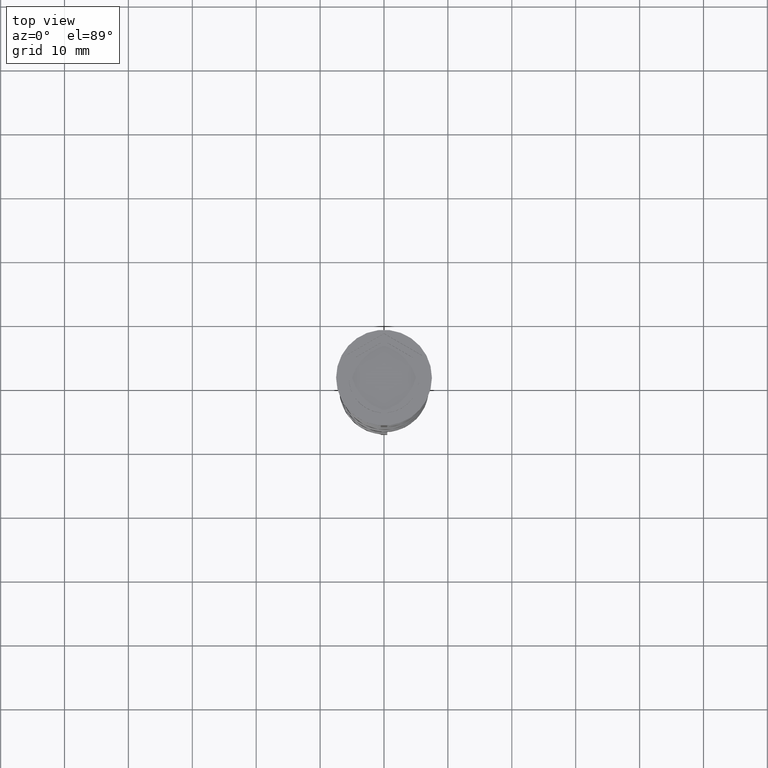
[diagram: clean part render]
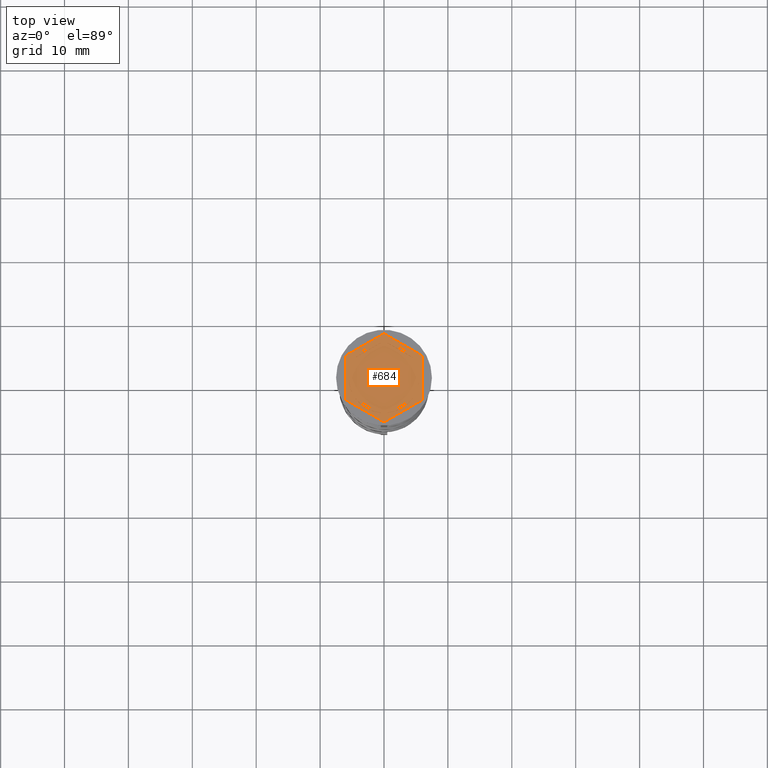
[diagram: same view with one face highlighted and labeled with its STEP entity id]
A machine part, top view. The second image highlights one B-rep face of the part: STEP entity #684.
In plain terms, the highlighted planar face has unit normal (0, 0, 1).
Its self-contained STEP definition (entity closure, byte-faithful):
#23 = VERTEX_POINT ( 'NONE', #2629 ) ;
#42 = DIRECTION ( 'NONE',  ( 1.000000000000000000, 0.000000000000000000, 0.000000000000000000 ) ) ;
#55 = ORIENTED_EDGE ( 'NONE', *, *, #3189, .F. ) ;
#58 = CARTESIAN_POINT ( 'NONE',  ( 0.000000000000000000, 6.928203230275506996, -1.000000000000000000 ) ) ;
#77 = VECTOR ( 'NONE', #2943, 1000.000000000000000 ) ;
#99 = ORIENTED_EDGE ( 'NONE', *, *, #3302, .F. ) ;
#144 = VERTEX_POINT ( 'NONE', #1241 ) ;
#194 = CIRCLE ( 'NONE', #2876, 5.500000000000001776 ) ;
#200 = ORIENTED_EDGE ( 'NONE', *, *, #822, .T. ) ;
#216 = DIRECTION ( 'NONE',  ( 1.000000000000000000, 0.000000000000000000, 0.000000000000000000 ) ) ;
#222 = ORIENTED_EDGE ( 'NONE', *, *, #2742, .F. ) ;
#230 = VECTOR ( 'NONE', #761, 1000.000000000000000 ) ;
#233 = LINE ( 'NONE', #1024, #692 ) ;
#253 = VECTOR ( 'NONE', #336, 1000.000000000000000 ) ;
#257 = CARTESIAN_POINT ( 'NONE',  ( 4.999999999999999112, -2.886751345948130432, -1.000000000000000888 ) ) ;
#319 = EDGE_CURVE ( 'NONE', #2925, #1383, #2705, .T. ) ;
#335 = DIRECTION ( 'NONE',  ( 1.000000000000000000, 0.000000000000000000, -0.000000000000000000 ) ) ;
#336 = DIRECTION ( 'NONE',  ( 0.000000000000000000, -1.000000000000000000, 0.000000000000000000 ) ) ;
#399 = ORIENTED_EDGE ( 'NONE', *, *, #1398, .T. ) ;
#405 = VECTOR ( 'NONE', #1809, 1000.000000000000227 ) ;
#425 = CARTESIAN_POINT ( 'NONE',  ( 0.5156865167015526330, -5.475770942661155161, -1.000000000000000888 ) ) ;
#427 = VECTOR ( 'NONE', #955, 1000.000000000000114 ) ;
#439 = CARTESIAN_POINT ( 'NONE',  ( -5.000000000000000888, -2.886751345948129099, -1.000000000000000888 ) ) ;
#447 = EDGE_CURVE ( 'NONE', #991, #2925, #1921, .T. ) ;
#471 = ORIENTED_EDGE ( 'NONE', *, *, #2321, .T. ) ;
#528 = CARTESIAN_POINT ( 'NONE',  ( -0.5156865167015569629, -5.475770942661155161, -1.000000000000000888 ) ) ;
#557 = CARTESIAN_POINT ( 'NONE',  ( 0.000000000000000000, 0.000000000000000000, -1.000000000000000000 ) ) ;
#570 = CARTESIAN_POINT ( 'NONE',  ( 0.000000000000000000, 0.000000000000000000, -1.000000000000000000 ) ) ;
#579 = AXIS2_PLACEMENT_3D ( 'NONE', #3180, #2029, #335 ) ;
#640 = ORIENTED_EDGE ( 'NONE', *, *, #3238, .F. ) ;
#656 = CARTESIAN_POINT ( 'NONE',  ( -6.000000000000000000, 3.464101615137752166, -1.000000000000000000 ) ) ;
#658 = AXIS2_PLACEMENT_3D ( 'NONE', #557, #829, #2513 ) ;
#662 = VERTEX_POINT ( 'NONE', #3161 ) ;
#684 = ADVANCED_FACE ( 'NONE', ( #873, #3452, #2067, #3143, #1726, #1794, #2834 ), #2905, .T. ) ;
#692 = VECTOR ( 'NONE', #3332, 1000.000000000000114 ) ;
#705 = VERTEX_POINT ( 'NONE', #894 ) ;
#711 = CIRCLE ( 'NONE', #3222, 5.500000000000001776 ) ;
#761 = DIRECTION ( 'NONE',  ( -0.8660254037844387076, 0.4999999999999998335, 0.000000000000000000 ) ) ;
#770 = CIRCLE ( 'NONE', #3114, 5.500000000000001776 ) ;
#822 = EDGE_CURVE ( 'NONE', #662, #991, #1028, .T. ) ;
#829 = DIRECTION ( 'NONE',  ( 0.000000000000000000, 0.000000000000000000, 1.000000000000000000 ) ) ;
#843 = EDGE_LOOP ( 'NONE', ( #222, #2511 ) ) ;
#873 = FACE_BOUND ( 'NONE', #3005, .T. ) ;
#883 = DIRECTION ( 'NONE',  ( 1.000000000000000000, 0.000000000000000000, 0.000000000000000000 ) ) ;
#894 = CARTESIAN_POINT ( 'NONE',  ( -6.000000000000000000, 3.464101615137752166, -1.000000000000000000 ) ) ;
#923 = CARTESIAN_POINT ( 'NONE',  ( 0.000000000000000000, 0.000000000000000000, -1.000000000000000000 ) ) ;
#928 = ORIENTED_EDGE ( 'NONE', *, *, #319, .T. ) ;
#932 = CARTESIAN_POINT ( 'NONE',  ( 6.000000000000000000, 3.464101615137753942, -1.000000000000000000 ) ) ;
#940 = DIRECTION ( 'NONE',  ( 1.000000000000000000, 0.000000000000000000, 0.000000000000000000 ) ) ;
#945 = LINE ( 'NONE', #656, #253 ) ;
#955 = DIRECTION ( 'NONE',  ( 0.8660254037844388186, -0.4999999999999997224, 0.000000000000000000 ) ) ;
#981 = EDGE_LOOP ( 'NONE', ( #928, #1342, #399, #471, #200, #3426 ) ) ;
#991 = VERTEX_POINT ( 'NONE', #2078 ) ;
#1024 = CARTESIAN_POINT ( 'NONE',  ( -1.734723475976807094E-15, -5.773502691896258199, -1.000000000000000888 ) ) ;
#1028 = LINE ( 'NONE', #2997, #405 ) ;
#1077 = CARTESIAN_POINT ( 'NONE',  ( 0.000000000000000000, 0.000000000000000000, -1.000000000000000000 ) ) ;
#1117 = CARTESIAN_POINT ( 'NONE',  ( 5.000000000000000888, 2.291287847477922135, -1.000000000000000888 ) ) ;
#1140 = VERTEX_POINT ( 'NONE', #2149 ) ;
#1169 = LINE ( 'NONE', #1206, #2929 ) ;
#1175 = CARTESIAN_POINT ( 'NONE',  ( -4.484313483298445036, -3.184483095183233470, -1.000000000000000888 ) ) ;
#1194 = EDGE_CURVE ( 'NONE', #2244, #3146, #233, .T. ) ;
#1195 = VERTEX_POINT ( 'NONE', #2493 ) ;
#1206 = CARTESIAN_POINT ( 'NONE',  ( -5.000000000000000888, 2.886751345948129099, -1.000000000000000888 ) ) ;
#1217 = CARTESIAN_POINT ( 'NONE',  ( 0.000000000000000000, 0.000000000000000000, -1.000000000000000000 ) ) ;
#1241 = CARTESIAN_POINT ( 'NONE',  ( -6.000000000000000000, -3.464101615137755719, -1.000000000000000000 ) ) ;
#1266 = VECTOR ( 'NONE', #3342, 1000.000000000000000 ) ;
#1342 = ORIENTED_EDGE ( 'NONE', *, *, #2697, .T. ) ;
#1383 = VERTEX_POINT ( 'NONE', #58 ) ;
#1398 = EDGE_CURVE ( 'NONE', #705, #144, #945, .T. ) ;
#1405 = VERTEX_POINT ( 'NONE', #1972 ) ;
#1418 = AXIS2_PLACEMENT_3D ( 'NONE', #570, #1712, #2824 ) ;
#1517 = DIRECTION ( 'NONE',  ( 0.000000000000000000, 0.000000000000000000, 1.000000000000000000 ) ) ;
#1520 = EDGE_CURVE ( 'NONE', #1983, #1793, #194, .T. ) ;
#1610 = CARTESIAN_POINT ( 'NONE',  ( -5.000000000000000888, -2.291287847477921247, -1.000000000000000888 ) ) ;
#1640 = CARTESIAN_POINT ( 'NONE',  ( 0.000000000000000000, 0.000000000000000000, -1.000000000000000000 ) ) ;
#1654 = DIRECTION ( 'NONE',  ( -0.8660254037844385966, -0.4999999999999998890, 0.000000000000000000 ) ) ;
#1664 = VERTEX_POINT ( 'NONE', #1175 ) ;
#1712 = DIRECTION ( 'NONE',  ( 0.000000000000000000, 0.000000000000000000, 1.000000000000000000 ) ) ;
#1726 = FACE_BOUND ( 'NONE', #3399, .T. ) ;
#1729 = ORIENTED_EDGE ( 'NONE', *, *, #3478, .F. ) ;
#1747 = EDGE_CURVE ( 'NONE', #1140, #2098, #2351, .T. ) ;
#1780 = ORIENTED_EDGE ( 'NONE', *, *, #2454, .F. ) ;
#1793 = VERTEX_POINT ( 'NONE', #2169 ) ;
#1794 = FACE_BOUND ( 'NONE', #843, .T. ) ;
#1809 = DIRECTION ( 'NONE',  ( 0.8660254037844385966, 0.5000000000000000000, 0.000000000000000000 ) ) ;
#1822 = CIRCLE ( 'NONE', #3336, 5.500000000000001776 ) ;
#1827 = AXIS2_PLACEMENT_3D ( 'NONE', #1077, #3391, #883 ) ;
#1854 = EDGE_LOOP ( 'NONE', ( #2870, #1729 ) ) ;
#1897 = DIRECTION ( 'NONE',  ( 0.000000000000000000, 0.000000000000000000, 1.000000000000000000 ) ) ;
#1921 = LINE ( 'NONE', #1957, #1266 ) ;
#1957 = CARTESIAN_POINT ( 'NONE',  ( 5.999999999999998224, -3.464101615137753942, -1.000000000000000000 ) ) ;
#1972 = CARTESIAN_POINT ( 'NONE',  ( -4.484313483298445036, 3.184483095183233470, -1.000000000000000888 ) ) ;
#1983 = VERTEX_POINT ( 'NONE', #3186 ) ;
#1999 = VECTOR ( 'NONE', #2142, 1000.000000000000114 ) ;
#2017 = CARTESIAN_POINT ( 'NONE',  ( 0.000000000000000000, 0.000000000000000000, -1.000000000000000000 ) ) ;
#2029 = DIRECTION ( 'NONE',  ( 0.000000000000000000, 0.000000000000000000, 1.000000000000000000 ) ) ;
#2067 = FACE_BOUND ( 'NONE', #3323, .T. ) ;
#2078 = CARTESIAN_POINT ( 'NONE',  ( 5.999999999999998224, -3.464101615137753942, -1.000000000000000000 ) ) ;
#2098 = VERTEX_POINT ( 'NONE', #1117 ) ;
#2121 = EDGE_CURVE ( 'NONE', #3146, #2244, #3406, .T. ) ;
#2142 = DIRECTION ( 'NONE',  ( 0.8660254037844387076, -0.4999999999999998335, 0.000000000000000000 ) ) ;
#2149 = CARTESIAN_POINT ( 'NONE',  ( 4.999999999999999112, -2.291287847477924355, -1.000000000000000888 ) ) ;
#2169 = CARTESIAN_POINT ( 'NONE',  ( 0.5156865167015596274, 5.475770942661155161, -1.000000000000000888 ) ) ;
#2207 = CARTESIAN_POINT ( 'NONE',  ( 0.000000000000000000, 6.928203230275506996, -1.000000000000000000 ) ) ;
#2244 = VERTEX_POINT ( 'NONE', #2846 ) ;
#2301 = CARTESIAN_POINT ( 'NONE',  ( -6.000000000000000000, -3.464101615137755719, -1.000000000000000000 ) ) ;
#2311 = CARTESIAN_POINT ( 'NONE',  ( 4.336808689942017736E-16, 5.773502691896259087, -1.000000000000000888 ) ) ;
#2321 = EDGE_CURVE ( 'NONE', #144, #662, #2864, .T. ) ;
#2324 = DIRECTION ( 'NONE',  ( 1.000000000000000000, 0.000000000000000000, 0.000000000000000000 ) ) ;
#2343 = LINE ( 'NONE', #2311, #2939 ) ;
#2351 = CIRCLE ( 'NONE', #658, 5.500000000000001776 ) ;
#2454 = EDGE_CURVE ( 'NONE', #3040, #23, #1169, .T. ) ;
#2488 = ORIENTED_EDGE ( 'NONE', *, *, #1194, .F. ) ;
#2493 = CARTESIAN_POINT ( 'NONE',  ( -0.5156865167015569629, 5.475770942661155161, -1.000000000000000888 ) ) ;
#2511 = ORIENTED_EDGE ( 'NONE', *, *, #2809, .F. ) ;
#2513 = DIRECTION ( 'NONE',  ( 1.000000000000000000, 0.000000000000000000, 0.000000000000000000 ) ) ;
#2528 = LINE ( 'NONE', #2207, #3571 ) ;
#2559 = DIRECTION ( 'NONE',  ( 0.8660254037844385966, 0.5000000000000001110, -0.000000000000000000 ) ) ;
#2568 = DIRECTION ( 'NONE',  ( 0.000000000000000000, 0.000000000000000000, 1.000000000000000000 ) ) ;
#2574 = CIRCLE ( 'NONE', #1418, 5.500000000000001776 ) ;
#2628 = ORIENTED_EDGE ( 'NONE', *, *, #2121, .F. ) ;
#2629 = CARTESIAN_POINT ( 'NONE',  ( -5.000000000000000888, 2.291287847477921247, -1.000000000000000888 ) ) ;
#2686 = CARTESIAN_POINT ( 'NONE',  ( 5.000000000000000888, 2.886751345948130876, -1.000000000000000888 ) ) ;
#2697 = EDGE_CURVE ( 'NONE', #1383, #705, #2528, .T. ) ;
#2700 = EDGE_LOOP ( 'NONE', ( #3202, #2842 ) ) ;
#2705 = LINE ( 'NONE', #3269, #230 ) ;
#2742 = EDGE_CURVE ( 'NONE', #1195, #1405, #2574, .T. ) ;
#2797 = VERTEX_POINT ( 'NONE', #3166 ) ;
#2809 = EDGE_CURVE ( 'NONE', #1405, #1195, #2343, .T. ) ;
#2824 = DIRECTION ( 'NONE',  ( 1.000000000000000000, 0.000000000000000000, 0.000000000000000000 ) ) ;
#2834 = FACE_OUTER_BOUND ( 'NONE', #981, .T. ) ;
#2842 = ORIENTED_EDGE ( 'NONE', *, *, #3506, .F. ) ;
#2846 = CARTESIAN_POINT ( 'NONE',  ( 4.484313483298445036, -3.184483095183233026, -1.000000000000000888 ) ) ;
#2864 = LINE ( 'NONE', #2301, #427 ) ;
#2870 = ORIENTED_EDGE ( 'NONE', *, *, #1747, .F. ) ;
#2871 = DIRECTION ( 'NONE',  ( 0.000000000000000000, 0.000000000000000000, 1.000000000000000000 ) ) ;
#2876 = AXIS2_PLACEMENT_3D ( 'NONE', #923, #2568, #940 ) ;
#2883 = DIRECTION ( 'NONE',  ( 0.000000000000000000, 1.000000000000000000, 0.000000000000000000 ) ) ;
#2905 = PLANE ( 'NONE',  #579 ) ;
#2925 = VERTEX_POINT ( 'NONE', #932 ) ;
#2928 = LINE ( 'NONE', #2686, #1999 ) ;
#2929 = VECTOR ( 'NONE', #2883, 1000.000000000000000 ) ;
#2939 = VECTOR ( 'NONE', #2559, 1000.000000000000000 ) ;
#2943 = DIRECTION ( 'NONE',  ( -0.8660254037844385966, 0.5000000000000001110, 0.000000000000000000 ) ) ;
#2997 = CARTESIAN_POINT ( 'NONE',  ( -4.280685092543093048E-16, -6.928203230275507885, -1.000000000000000000 ) ) ;
#3005 = EDGE_LOOP ( 'NONE', ( #3193, #55 ) ) ;
#3040 = VERTEX_POINT ( 'NONE', #1610 ) ;
#3114 = AXIS2_PLACEMENT_3D ( 'NONE', #1640, #1897, #216 ) ;
#3143 = FACE_BOUND ( 'NONE', #2700, .T. ) ;
#3146 = VERTEX_POINT ( 'NONE', #425 ) ;
#3161 = CARTESIAN_POINT ( 'NONE',  ( -4.280685092543093048E-16, -6.928203230275507885, -1.000000000000000000 ) ) ;
#3166 = CARTESIAN_POINT ( 'NONE',  ( -5.500000000000001776, 0.000000000000000000, -1.000000000000000000 ) ) ;
#3180 = CARTESIAN_POINT ( 'NONE',  ( 0.000000000000000000, 0.000000000000000000, -1.000000000000000000 ) ) ;
#3186 = CARTESIAN_POINT ( 'NONE',  ( 4.484313483298442371, 3.184483095183238355, -1.000000000000000888 ) ) ;
#3189 = EDGE_CURVE ( 'NONE', #1793, #1983, #2928, .T. ) ;
#3193 = ORIENTED_EDGE ( 'NONE', *, *, #1520, .F. ) ;
#3198 = VERTEX_POINT ( 'NONE', #528 ) ;
#3202 = ORIENTED_EDGE ( 'NONE', *, *, #3483, .F. ) ;
#3222 = AXIS2_PLACEMENT_3D ( 'NONE', #1217, #2871, #42 ) ;
#3238 = EDGE_CURVE ( 'NONE', #23, #2797, #1822, .T. ) ;
#3269 = CARTESIAN_POINT ( 'NONE',  ( 6.000000000000000000, 3.464101615137753942, -1.000000000000000000 ) ) ;
#3302 = EDGE_CURVE ( 'NONE', #2797, #3040, #711, .T. ) ;
#3319 = LINE ( 'NONE', #439, #77 ) ;
#3323 = EDGE_LOOP ( 'NONE', ( #2628, #2488 ) ) ;
#3332 = DIRECTION ( 'NONE',  ( -0.8660254037844387076, -0.4999999999999997224, 0.000000000000000000 ) ) ;
#3336 = AXIS2_PLACEMENT_3D ( 'NONE', #2017, #1517, #2324 ) ;
#3342 = DIRECTION ( 'NONE',  ( 2.503857664561932376E-16, 1.000000000000000000, 0.000000000000000000 ) ) ;
#3391 = DIRECTION ( 'NONE',  ( 0.000000000000000000, 0.000000000000000000, 1.000000000000000000 ) ) ;
#3399 = EDGE_LOOP ( 'NONE', ( #640, #1780, #99 ) ) ;
#3406 = CIRCLE ( 'NONE', #1827, 5.500000000000001776 ) ;
#3426 = ORIENTED_EDGE ( 'NONE', *, *, #447, .T. ) ;
#3452 = FACE_BOUND ( 'NONE', #1854, .T. ) ;
#3478 = EDGE_CURVE ( 'NONE', #2098, #1140, #3490, .T. ) ;
#3483 = EDGE_CURVE ( 'NONE', #1664, #3198, #770, .T. ) ;
#3490 = LINE ( 'NONE', #257, #3515 ) ;
#3506 = EDGE_CURVE ( 'NONE', #3198, #1664, #3319, .T. ) ;
#3515 = VECTOR ( 'NONE', #3595, 1000.000000000000000 ) ;
#3571 = VECTOR ( 'NONE', #1654, 1000.000000000000227 ) ;
#3595 = DIRECTION ( 'NONE',  ( -3.004629197474317076E-16, -1.000000000000000000, 0.000000000000000000 ) ) ;